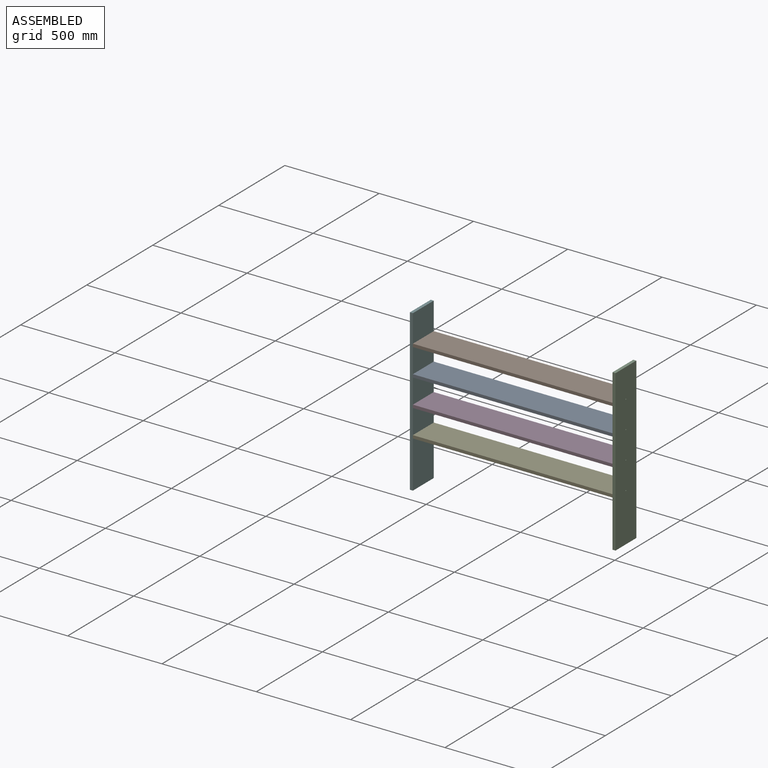
[diagram: assembled view]
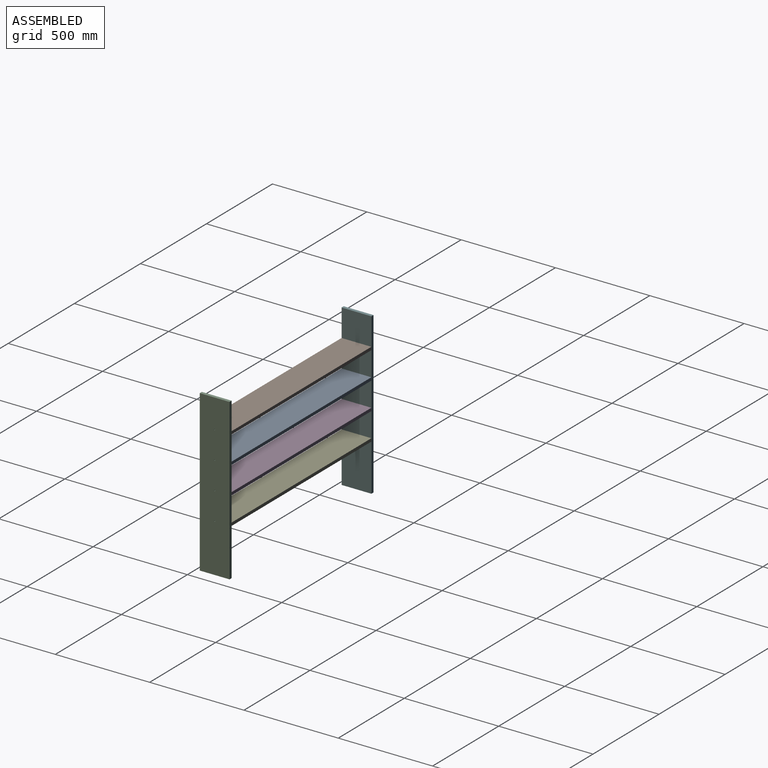
[diagram: assembled view, second angle]
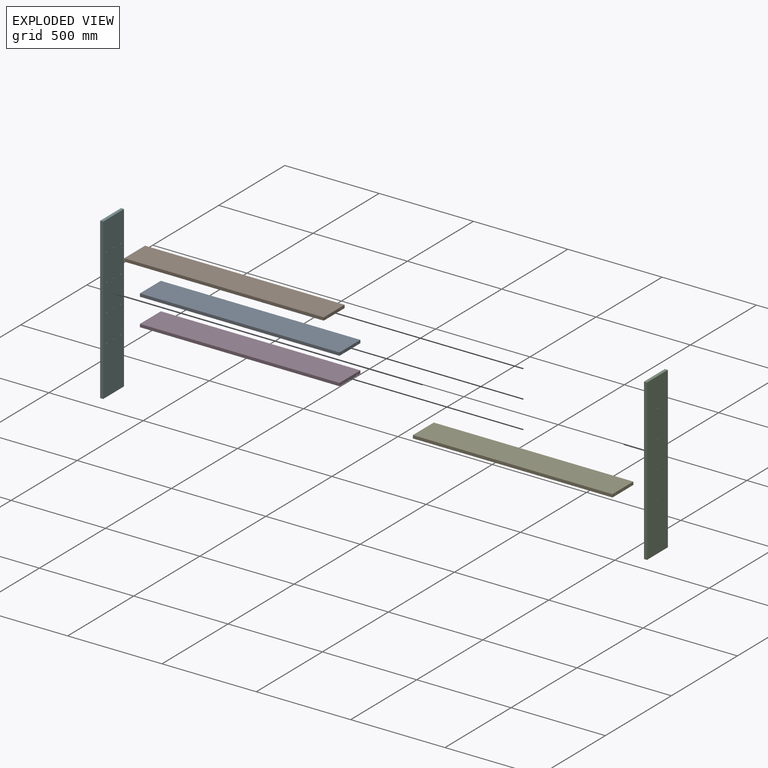
[diagram: exploded view]
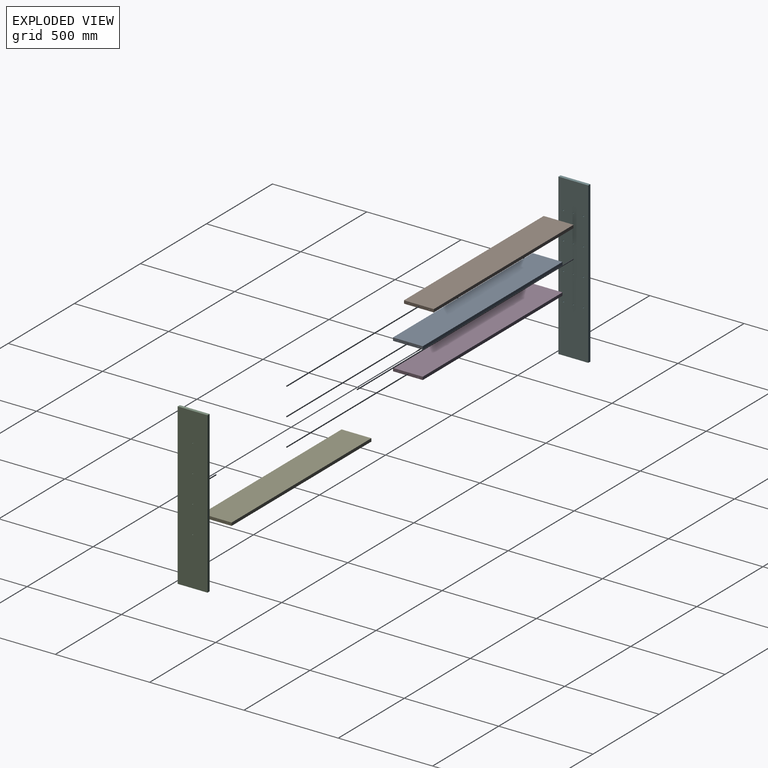
[diagram: exploded view, second angle]
ASSEMBLY  parts=6 mates=4
PART A: 18 faces, bbox 1058x158x16 mm
  f0: plane 1058x16mm, normal (0,-1,0), area 16928mm2, adj f1,f3,f4,f5
  f1: plane 158x16mm, normal (1,0,0), area 2451.8mm2, adj f0,f2,f4,f5,f6,f8,f10
  f2: plane 1058x16mm, normal (0,1,0), area 16928mm2, adj f1,f3,f4,f5
  f3: plane 158x16mm, normal (-1,0,0), area 2451.8mm2, adj f0,f2,f4,f5,f12,f14,f16
  f4: plane 1058x158mm, normal (0,0,1), area 167164mm2, adj f0,f1,f2,f3
  f5: plane 1058x158mm, normal (0,0,-1), area 167164mm2, adj f0,f1,f2,f3
  f6: cylinder r=3mm len=25mm, axis (1,0,0), area 471.2mm2, adj f1,f7
  f7: plane 6x6mm, normal (1,0,0), area 28.3mm2, adj f6
  f8: cylinder r=3mm len=25mm, axis (1,0,0), area 471.2mm2, adj f1,f9
  f9: plane 6x6mm, normal (1,0,0), area 28.3mm2, adj f8
  f10: cylinder r=2.5mm len=40mm, axis (1,0,0), area 628.3mm2, adj f1,f11
  f11: plane 5x5mm, normal (1,0,0), area 19.6mm2, adj f10
  f12: cylinder r=3mm len=25mm, axis (-1,0,0), area 471.2mm2, adj f3,f13
  f13: plane 6x6mm, normal (-1,0,0), area 28.3mm2, adj f12
  f14: cylinder r=3mm len=25mm, axis (-1,0,0), area 471.2mm2, adj f3,f15
  f15: plane 6x6mm, normal (-1,0,0), area 28.3mm2, adj f14
  f16: cylinder r=2.5mm len=40mm, axis (-1,0,0), area 628.3mm2, adj f3,f17
  f17: plane 5x5mm, normal (-1,0,0), area 19.6mm2, adj f16
PART B: same geometry as A
PART C: 26 faces, bbox 16x158x850 mm
  f0: plane 158x16mm, normal (0,0,1), area 2528mm2, adj f1,f3,f4,f5
  f1: plane 850x16mm, normal (0,-1,0), area 13600mm2, adj f0,f2,f4,f5
  f2: plane 158x16mm, normal (0,0,-1), area 2528mm2, adj f1,f3,f4,f5
  f3: plane 850x16mm, normal (0,1,0), area 13600mm2, adj f0,f2,f4,f5
  f4: plane 850x158mm, normal (1,0,0), area 133995.3mm2, adj f0,f1,f2,f3,f6,f7,f8,f9
  f5: plane 850x158mm, normal (-1,0,0), area 134221.5mm2, adj f0,f1,f2,f3,f6,f7,f8,f9
  f6: cylinder r=2.5mm len=16mm, axis (1,0,0), area 251.3mm2, adj f4,f5
  f7: cylinder r=2.5mm len=16mm, axis (1,0,0), area 251.3mm2, adj f4,f5
  f8: cylinder r=2.5mm len=16mm, axis (1,0,0), area 251.3mm2, adj f4,f5
  f9: cylinder r=2.5mm len=16mm, axis (1,0,0), area 251.3mm2, adj f4,f5
  f10: cylinder r=3mm len=8mm, axis (1,0,0), area 150.8mm2, adj f4,f11
  f11: plane 6x6mm, normal (1,0,0), area 28.3mm2, adj f10
  f12: cylinder r=3mm len=8mm, axis (1,0,0), area 150.8mm2, adj f4,f13
  f13: plane 6x6mm, normal (1,0,0), area 28.3mm2, adj f12
  f14: cylinder r=3mm len=8mm, axis (1,0,0), area 150.8mm2, adj f4,f15
  f15: plane 6x6mm, normal (1,0,0), area 28.3mm2, adj f14
  f16: cylinder r=3mm len=8mm, axis (1,0,0), area 150.8mm2, adj f4,f17
  f17: plane 6x6mm, normal (1,0,0), area 28.3mm2, adj f16
  f18: cylinder r=3mm len=8mm, axis (1,0,0), area 150.8mm2, adj f4,f19
  f19: plane 6x6mm, normal (1,0,0), area 28.3mm2, adj f18
  f20: cylinder r=3mm len=8mm, axis (1,0,0), area 150.8mm2, adj f4,f21
  f21: plane 6x6mm, normal (1,0,0), area 28.3mm2, adj f20
  f22: cylinder r=3mm len=8mm, axis (1,0,0), area 150.8mm2, adj f4,f23
  f23: plane 6x6mm, normal (1,0,0), area 28.3mm2, adj f22
  f24: cylinder r=3mm len=8mm, axis (1,0,0), area 150.8mm2, adj f4,f25
  f25: plane 6x6mm, normal (1,0,0), area 28.3mm2, adj f24
PART D: same geometry as A
PART E: same geometry as A
PART F: same geometry as C
PLACE A t=(173.29,136.59,512.18)mm
PLACE B t=(173.29,136.59,658.18)mm
PLACE C rot(axis=(0,0,-1),180deg) t=(-28.27,101.31,417.91)mm fixed
PLACE D t=(173.29,136.59,366.18)mm
PLACE E t=(173.29,136.59,220.18)mm
PLACE F t=(-1118.27,147.74,417.91)mm
MATE fastened A.f10 <-> C.f8  axis (1,0,0) through (-44.27,124.53,520.18)mm
MATE fastened B.f10 <-> C.f9  axis (1,0,0) through (-44.27,124.53,666.18)mm
MATE fastened E.f10 <-> C.f6  axis (1,0,0) through (-44.27,124.53,228.18)mm
MATE fastened D.f10 <-> C.f7  axis (1,0,0) through (-44.27,124.53,374.18)mm
